MODEL slx_4e979360c128
KIND model
CONFIG AbsTol = auto
CONFIG EnableMultiTasking = off
CONFIG FixedStep = 1e-4
CONFIG InitFcn = projectInitFcn;\nTsSimulation = TsStep;\nTsStep = -1;\nF28379D_setup;
CONFIG MaxStep = auto
CONFIG MinStep = auto
CONFIG PreLoadFcn = projectInitFcn;\nTsSimulation = TsStep;\nTsStep = -1;\nF28379D_setup;
CONFIG RelTol = 1e-3
CONFIG SampleTimeConstraint = Unconstrained
CONFIG SolverName = FixedStepDiscrete
CONFIG StartTime = 0.0
CONFIG StopTime = inf
BLOCK [SubSystem] ADC-PWM Subsystem
  TreatAsAtomicUnit = on
BLOCK [Reference] ADC-PWM Subsystem/ADC28  REF=c2802xlib/ADC
  SourceBlock = c2802xlib/ADC
  SourceType = ADC Type 3-5
  UserDataPersistent = on
BLOCK [Reference] ADC-PWM Subsystem/ADC29  REF=c2802xlib/ADC
  SourceBlock = c2802xlib/ADC
  SourceType = ADC Type 3-5
  UserDataPersistent = on
BLOCK [Reference] ADC-PWM Subsystem/ADC30  REF=c2802xlib/ADC
  SourceBlock = c2802xlib/ADC
  SourceType = ADC Type 3-5
  UserDataPersistent = on
BLOCK [Constant] ADC-PWM Subsystem/Constant
  OutDataTypeStr = single
  Value = 0
BLOCK [Constant] ADC-PWM Subsystem/Constant6
  OutDataTypeStr = single
  SampleTime = -1
  Value = CPU_DAC_offset
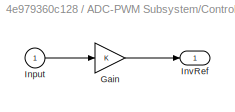
BLOCK [SubSystem] ADC-PWM Subsystem/Controller
  NameLocation = top
  ShowPortLabels = none
BLOCK [Gain] ADC-PWM Subsystem/Controller/Gain
BLOCK [Inport] ADC-PWM Subsystem/Controller/Input
BLOCK [Outport] ADC-PWM Subsystem/Controller/InvRef
  VectorParamsAs1DForOutWhenUnconnected = off
BLOCK [Reference] ADC-PWM Subsystem/DAC1  REF=c2837xDlib/DAC
  SourceBlock = c2837xDlib/DAC
  SourceType = codertarget.tic2000.blocks.DACWrite
BLOCK [DataTypeConversion] ADC-PWM Subsystem/Data Type Conversion1
  OutDataTypeStr = int16
  RndMeth = Floor
  SaturateOnIntegerOverflow = off
BLOCK [DataTypeConversion] ADC-PWM Subsystem/Data Type Conversion10
  OutDataTypeStr = single
  RndMeth = Floor
  SaturateOnIntegerOverflow = off
BLOCK [DataTypeConversion] ADC-PWM Subsystem/Data Type Conversion11
  OutDataTypeStr = single
  RndMeth = Floor
  SaturateOnIntegerOverflow = off
BLOCK [DataTypeConversion] ADC-PWM Subsystem/Data Type Conversion17
  OutDataTypeStr = uint16
  RndMeth = Floor
  SaturateOnIntegerOverflow = off
BLOCK [DataTypeConversion] ADC-PWM Subsystem/Data Type Conversion2
  OutDataTypeStr = single
  RndMeth = Floor
  SaturateOnIntegerOverflow = off
BLOCK [DataTypeConversion] ADC-PWM Subsystem/Data Type Conversion25
  OutDataTypeStr = boolean
  RndMeth = Floor
  SaturateOnIntegerOverflow = off
BLOCK [DataTypeConversion] ADC-PWM Subsystem/Data Type Conversion26
  OutDataTypeStr = single
  RndMeth = Floor
  SaturateOnIntegerOverflow = off
BLOCK [DataTypeConversion] ADC-PWM Subsystem/Data Type Conversion27
  OutDataTypeStr = int16
  RndMeth = Floor
  SaturateOnIntegerOverflow = off
BLOCK [DataTypeConversion] ADC-PWM Subsystem/Data Type Conversion60
  NameLocation = top
  OutDataTypeStr = single
  RndMeth = Floor
  SaturateOnIntegerOverflow = off
BLOCK [DataTypeConversion] ADC-PWM Subsystem/Data Type Conversion9
  OutDataTypeStr = single
  RndMeth = Floor
  SaturateOnIntegerOverflow = off
BLOCK [Reference] ADC-PWM Subsystem/Enable pwm  REF=c2837xDlib/Digital Input
  SourceBlock = c2837xDlib/Digital Input
  SourceType = F2837x GPIO Digital Input
  UserDataPersistent = on
BLOCK [Reference] ADC-PWM Subsystem/Enable pwms  REF=c2837xDlib/Digital Output
  SourceBlock = c2837xDlib/Digital Output
  SourceType = F2837x GPIO Digital Output
  UserDataPersistent = on
BLOCK [From] ADC-PWM Subsystem/From
  GotoTag = V_DC
BLOCK [From] ADC-PWM Subsystem/From1
  GotoTag = uC_L1
BLOCK [From] ADC-PWM Subsystem/From13
  GotoTag = Vmod
BLOCK [From] ADC-PWM Subsystem/From2
  GotoTag = Voltage
BLOCK [From] ADC-PWM Subsystem/From20
  GotoTag = uC_L1
BLOCK [From] ADC-PWM Subsystem/From3
  GotoTag = Voltage
BLOCK [From] ADC-PWM Subsystem/From4
  GotoTag = InvRef
BLOCK [From] ADC-PWM Subsystem/From5
  GotoTag = Voltage
BLOCK [From] ADC-PWM Subsystem/From64
  GotoTag = ena_pwm
BLOCK [Gain] ADC-PWM Subsystem/Gain1
  Gain = CPU_Timer_period
BLOCK [Gain] ADC-PWM Subsystem/Gain11
  Gain = (4095/(330*2))
  OutDataTypeStr = Inherit: Same as input
BLOCK [Goto] ADC-PWM Subsystem/Goto
  GotoTag = InvRef
BLOCK [Goto] ADC-PWM Subsystem/Goto13
  GotoTag = Voltage
BLOCK [Goto] ADC-PWM Subsystem/Goto14
  GotoTag = Current
BLOCK [Goto] ADC-PWM Subsystem/Goto15
  GotoTag = V_DC
BLOCK [Goto] ADC-PWM Subsystem/Goto40
  GotoTag = ena_pwm
BLOCK [Goto] ADC-PWM Subsystem/Goto54
  GotoTag = uC_L1
BLOCK [Goto] ADC-PWM Subsystem/Goto64
  GotoTag = Vmod
BLOCK [Reference] ADC-PWM Subsystem/Median Filter  REF=dspstat3/Median
Filter
  LibrarySourceBlock = dspfdesign/Median\nFilter
  SourceBlock = dspstat3/Median\nFilter
  SourceType = dsp.simulink.MedianFilter
BLOCK [Logic] ADC-PWM Subsystem/NOT
  AllPortsSameDT = off
  IconShape = distinctive
  Operator = NOT
  OutDataTypeStr = boolean
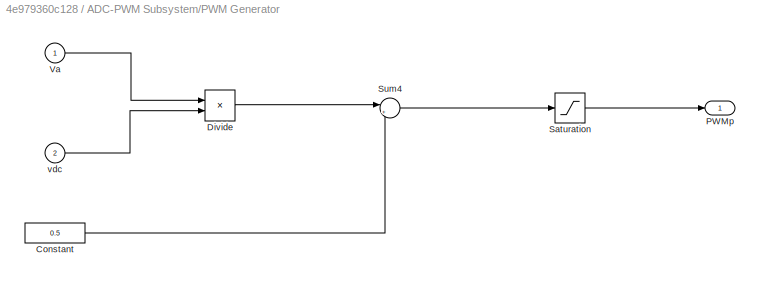
BLOCK [SubSystem] ADC-PWM Subsystem/PWM Generator
  NameLocation = top
  ShowPortLabels = none
BLOCK [Constant] ADC-PWM Subsystem/PWM Generator/Constant
  OutDataTypeStr = single
  Value = 0.5
BLOCK [Product] ADC-PWM Subsystem/PWM Generator/Divide
  Inputs = */
BLOCK [Outport] ADC-PWM Subsystem/PWM Generator/PWMp
  VectorParamsAs1DForOutWhenUnconnected = off
BLOCK [Saturate] ADC-PWM Subsystem/PWM Generator/Saturation
  LowerLimit = 0.01
  UpperLimit = 0.99
BLOCK [Sum] ADC-PWM Subsystem/PWM Generator/Sum4
  Inputs = |++
BLOCK [Inport] ADC-PWM Subsystem/PWM Generator/Va
BLOCK [Inport] ADC-PWM Subsystem/PWM Generator/vdc
  Port = 2
BLOCK [Scope] ADC-PWM Subsystem/Scope
  Floating = off
  NumInputPorts = 1
  ScopeSpecificationString = Simulink.scopes.TimeScopeBlockCfg('CurrentConfiguration', extmgr.ConfigurationSet(extmgr.Configuration('Core','General UI',true),extmgr.Configuration('Core','Source UI',true),extmgr.Configuration('Sources','WiredSimulink',true,'DataLoggingVariableName','ScopeData10'),extmgr.Configuration('Visuals','Time Domain',true,'SerializedDisplays',{struct('MinYLimReal','-408.84617','MaxYLimReal','401.5934','...<+1519ch>
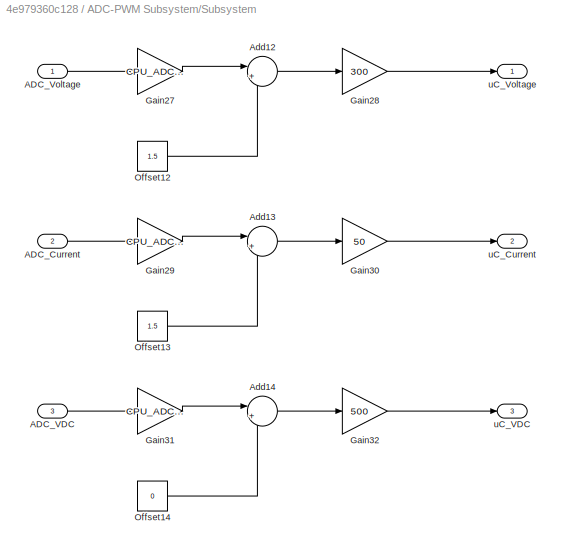
BLOCK [SubSystem] ADC-PWM Subsystem/Subsystem
BLOCK [Inport] ADC-PWM Subsystem/Subsystem/ADC_Current
  Port = 2
BLOCK [Inport] ADC-PWM Subsystem/Subsystem/ADC_VDC
  Port = 3
BLOCK [Inport] ADC-PWM Subsystem/Subsystem/ADC_Voltage
BLOCK [Sum] ADC-PWM Subsystem/Subsystem/Add12
  Inputs = |+-
BLOCK [Sum] ADC-PWM Subsystem/Subsystem/Add13
  Inputs = |+-
BLOCK [Sum] ADC-PWM Subsystem/Subsystem/Add14
  Inputs = |+-
BLOCK [Gain] ADC-PWM Subsystem/Subsystem/Gain27
  Gain = CPU_ADC_res
BLOCK [Gain] ADC-PWM Subsystem/Subsystem/Gain28
  Gain = 300
BLOCK [Gain] ADC-PWM Subsystem/Subsystem/Gain29
  Gain = CPU_ADC_res
BLOCK [Gain] ADC-PWM Subsystem/Subsystem/Gain30
  Gain = 50
BLOCK [Gain] ADC-PWM Subsystem/Subsystem/Gain31
  Gain = CPU_ADC_res
BLOCK [Gain] ADC-PWM Subsystem/Subsystem/Gain32
  Gain = 500
BLOCK [Constant] ADC-PWM Subsystem/Subsystem/Offset12
  OutDataTypeStr = single
  Value = 1.5
BLOCK [Constant] ADC-PWM Subsystem/Subsystem/Offset13
  OutDataTypeStr = single
  Value = 1.5
BLOCK [Constant] ADC-PWM Subsystem/Subsystem/Offset14
  OutDataTypeStr = single
  Value = 0
BLOCK [Outport] ADC-PWM Subsystem/Subsystem/uC_Current
  Port = 2
BLOCK [Outport] ADC-PWM Subsystem/Subsystem/uC_VDC
  Port = 3
BLOCK [Outport] ADC-PWM Subsystem/Subsystem/uC_Voltage
BLOCK [Sum] ADC-PWM Subsystem/Sum2
  Inputs = |++
BLOCK [Switch] ADC-PWM Subsystem/Switch
  Criteria = u2 > Threshold
  InputSameDT = off
  SaturateOnIntegerOverflow = off
  Threshold = 0.5
BLOCK [Sin] ADC-PWM Subsystem/Vollt Ref
  Amplitude = 230*sqrt(2)
  Frequency = 2*pi*50
BLOCK [Reference] ADC-PWM Subsystem/ePWM1  REF=c2802xlib/ePWM
  SourceBlock = c2802xlib/ePWM
  SourceType = ePWM Type 1-4
  UserDataPersistent = on
BLOCK [Reference] ADC-PWM Subsystem/ePWM2  REF=c2802xlib/ePWM
  SourceBlock = c2802xlib/ePWM
  SourceType = ePWM Type 1-4
  UserDataPersistent = on
BLOCK [TriggerPort] ADC-PWM Subsystem/function
  StatesWhenEnabling = held
  TriggerType = function-call
  VariantControl = Variant
BLOCK [Reference] C28x Hardware Interrupt  REF=c2000lib/Scheduling/C28x Hardware Interrupt
  SourceBlock = c2000lib/Scheduling/C28x Hardware Interrupt
  SourceType = C28x Interrupt Block
ANNOTATION (root): F28379D Template by Manuel Barrios | May 14, 2024 <email>
ANNOTATION (root): Sampling, switching and solver: Fixed Step Size: 1e-4 = 10kHz May 14, 2024 Set Sample Time to " -1"
ANNOTATION ADC-PWM Subsystem: 0 = Open loop
ANNOTATION ADC-PWM Subsystem: 1 = Your controller
ANNOTATION ADC-PWM Subsystem: F28379D Template by Manuel Barrios | May 14, 2024 <email>
ANNOTATION ADC-PWM Subsystem: If you need more PWMs, then copy ePWM2
ANNOTATION ADC-PWM Subsystem: If you need more inputs, then copy ADC2 Block (aka AO14)
ANNOTATION ADC-PWM Subsystem: 4095 are the 12 bits of the DAC. 330 in the peak voltatege.
ANNOTATION ADC-PWM Subsystem: ADC
ANNOTATION ADC-PWM Subsystem: AO06
ANNOTATION ADC-PWM Subsystem: AO14
ANNOTATION ADC-PWM Subsystem: AO24
ANNOTATION ADC-PWM Subsystem: DAC
ANNOTATION ADC-PWM Subsystem: DI18
ANNOTATION ADC-PWM Subsystem: DO06
ANNOTATION ADC-PWM Subsystem: Digital input
ANNOTATION ADC-PWM Subsystem: Digital output
ANNOTATION ADC-PWM Subsystem: Do not copy this block (ADC3)
ANNOTATION ADC-PWM Subsystem: Do not delete
ANNOTATION ADC-PWM Subsystem: PWMs
ANNOTATION ADC-PWM Subsystem: Paste inside your controller
ANNOTATION ADC-PWM Subsystem: Real Time monitoring
LINE ADC-PWM Subsystem/ADC28:1 -> ADC-PWM Subsystem/Data Type Conversion9:1
LINE ADC-PWM Subsystem/ADC29:1 -> ADC-PWM Subsystem/Data Type Conversion10:1
LINE ADC-PWM Subsystem/ADC30:1 -> ADC-PWM Subsystem/Data Type Conversion11:1
LINE ADC-PWM Subsystem/Constant6:1 -> ADC-PWM Subsystem/Sum2:2
LINE ADC-PWM Subsystem/Constant:1 -> ADC-PWM Subsystem/Switch:2
LINE ADC-PWM Subsystem/Controller/Gain:1 -> ADC-PWM Subsystem/Controller/InvRef:1
LINE ADC-PWM Subsystem/Controller/Input:1 -> ADC-PWM Subsystem/Controller/Gain:1
LINE ADC-PWM Subsystem/Controller:1 -> ADC-PWM Subsystem/Goto:1
LINE ADC-PWM Subsystem/Data Type Conversion10:1 -> ADC-PWM Subsystem/Subsystem:2
LINE ADC-PWM Subsystem/Data Type Conversion11:1 -> ADC-PWM Subsystem/Subsystem:3
LINE ADC-PWM Subsystem/Data Type Conversion17:1 -> ADC-PWM Subsystem/DAC1:1
LINE ADC-PWM Subsystem/Data Type Conversion1:1 -> ADC-PWM Subsystem/ePWM2:1
LINE ADC-PWM Subsystem/Data Type Conversion25:1 -> ADC-PWM Subsystem/Enable pwms:1
LINE ADC-PWM Subsystem/Data Type Conversion26:1 -> ADC-PWM Subsystem/Goto40:1
LINE ADC-PWM Subsystem/Data Type Conversion27:1 -> ADC-PWM Subsystem/ePWM1:1
LINE ADC-PWM Subsystem/Data Type Conversion2:1 -> ADC-PWM Subsystem/Switch:3
LINE ADC-PWM Subsystem/Data Type Conversion60:1 -> ADC-PWM Subsystem/Scope:1
LINE ADC-PWM Subsystem/Data Type Conversion9:1 -> ADC-PWM Subsystem/Subsystem:1
LINE ADC-PWM Subsystem/Enable pwm:1 -> ADC-PWM Subsystem/Data Type Conversion26:1
LINE ADC-PWM Subsystem/From13:1 -> ADC-PWM Subsystem/Gain1:1
LINE ADC-PWM Subsystem/From1:1 -> ADC-PWM Subsystem/NOT:1
LINE ADC-PWM Subsystem/From20:1 -> ADC-PWM Subsystem/Data Type Conversion27:1
LINE ADC-PWM Subsystem/From2:1 -> ADC-PWM Subsystem/Gain11:1
LINE ADC-PWM Subsystem/From3:1 -> ADC-PWM Subsystem/Data Type Conversion60:1
LINE ADC-PWM Subsystem/From4:1 -> ADC-PWM Subsystem/Switch:1
LINE ADC-PWM Subsystem/From5:1 -> ADC-PWM Subsystem/Controller:1
LINE ADC-PWM Subsystem/From64:1 -> ADC-PWM Subsystem/Data Type Conversion25:1
LINE ADC-PWM Subsystem/From:1 -> ADC-PWM Subsystem/Median Filter:1
LINE ADC-PWM Subsystem/Gain11:1 -> ADC-PWM Subsystem/Sum2:1
LINE ADC-PWM Subsystem/Gain1:1 -> ADC-PWM Subsystem/Goto54:1
LINE ADC-PWM Subsystem/Median Filter:1 -> ADC-PWM Subsystem/PWM Generator:2
LINE ADC-PWM Subsystem/NOT:1 -> ADC-PWM Subsystem/Data Type Conversion1:1
LINE ADC-PWM Subsystem/PWM Generator/Constant:1 -> ADC-PWM Subsystem/PWM Generator/Sum4:2
LINE ADC-PWM Subsystem/PWM Generator/Divide:1 -> ADC-PWM Subsystem/PWM Generator/Sum4:1
LINE ADC-PWM Subsystem/PWM Generator/Saturation:1 -> ADC-PWM Subsystem/PWM Generator/PWMp:1
LINE ADC-PWM Subsystem/PWM Generator/Sum4:1 -> ADC-PWM Subsystem/PWM Generator/Saturation:1
LINE ADC-PWM Subsystem/PWM Generator/Va:1 -> ADC-PWM Subsystem/PWM Generator/Divide:1
LINE ADC-PWM Subsystem/PWM Generator/vdc:1 -> ADC-PWM Subsystem/PWM Generator/Divide:2
LINE ADC-PWM Subsystem/PWM Generator:1 -> ADC-PWM Subsystem/Goto64:1
LINE ADC-PWM Subsystem/Subsystem/ADC_Current:1 -> ADC-PWM Subsystem/Subsystem/Gain29:1
LINE ADC-PWM Subsystem/Subsystem/ADC_VDC:1 -> ADC-PWM Subsystem/Subsystem/Gain31:1
LINE ADC-PWM Subsystem/Subsystem/ADC_Voltage:1 -> ADC-PWM Subsystem/Subsystem/Gain27:1
LINE ADC-PWM Subsystem/Subsystem/Add12:1 -> ADC-PWM Subsystem/Subsystem/Gain28:1
LINE ADC-PWM Subsystem/Subsystem/Add13:1 -> ADC-PWM Subsystem/Subsystem/Gain30:1
LINE ADC-PWM Subsystem/Subsystem/Add14:1 -> ADC-PWM Subsystem/Subsystem/Gain32:1
LINE ADC-PWM Subsystem/Subsystem/Gain27:1 -> ADC-PWM Subsystem/Subsystem/Add12:1
LINE ADC-PWM Subsystem/Subsystem/Gain28:1 -> ADC-PWM Subsystem/Subsystem/uC_Voltage:1
LINE ADC-PWM Subsystem/Subsystem/Gain29:1 -> ADC-PWM Subsystem/Subsystem/Add13:1
LINE ADC-PWM Subsystem/Subsystem/Gain30:1 -> ADC-PWM Subsystem/Subsystem/uC_Current:1
LINE ADC-PWM Subsystem/Subsystem/Gain31:1 -> ADC-PWM Subsystem/Subsystem/Add14:1
LINE ADC-PWM Subsystem/Subsystem/Gain32:1 -> ADC-PWM Subsystem/Subsystem/uC_VDC:1
LINE ADC-PWM Subsystem/Subsystem/Offset12:1 -> ADC-PWM Subsystem/Subsystem/Add12:2
LINE ADC-PWM Subsystem/Subsystem/Offset13:1 -> ADC-PWM Subsystem/Subsystem/Add13:2
LINE ADC-PWM Subsystem/Subsystem/Offset14:1 -> ADC-PWM Subsystem/Subsystem/Add14:2
LINE ADC-PWM Subsystem/Subsystem:1 -> ADC-PWM Subsystem/Goto13:1
LINE ADC-PWM Subsystem/Subsystem:2 -> ADC-PWM Subsystem/Goto14:1
LINE ADC-PWM Subsystem/Subsystem:3 -> ADC-PWM Subsystem/Goto15:1
LINE ADC-PWM Subsystem/Sum2:1 -> ADC-PWM Subsystem/Data Type Conversion17:1
LINE ADC-PWM Subsystem/Switch:1 -> ADC-PWM Subsystem/PWM Generator:1
LINE ADC-PWM Subsystem/Vollt Ref:1 -> ADC-PWM Subsystem/Data Type Conversion2:1
LINE C28x Hardware Interrupt:1 -> ADC-PWM Subsystem:trigger
